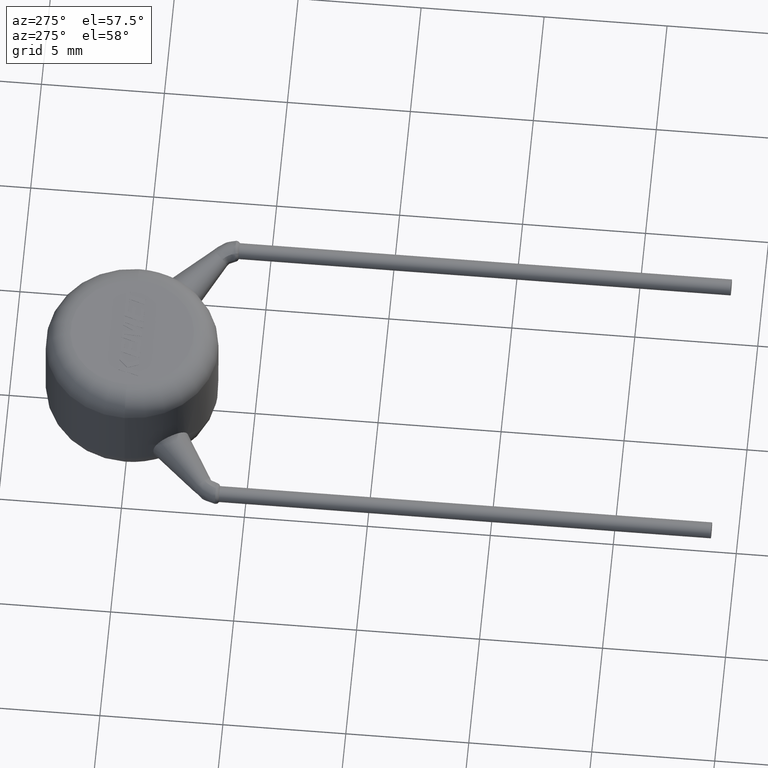
[diagram: clean part render]
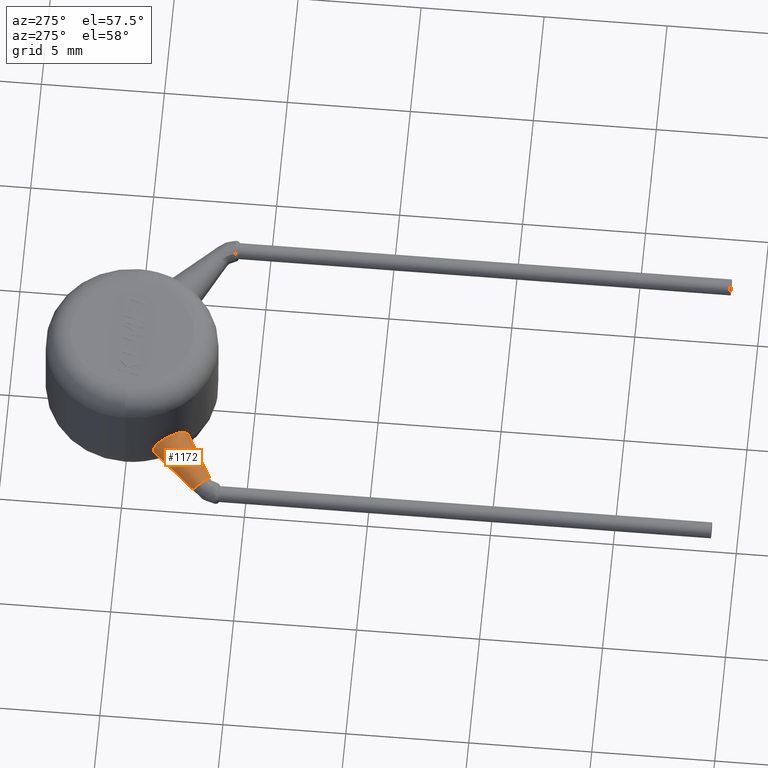
[diagram: same view with one face highlighted and labeled with its STEP entity id]
A machine part, auxiliary view. The second image highlights one B-rep face of the part: STEP entity #1172.
In plain terms, the highlighted conical surface has half-angle 10 deg.
Its self-contained STEP definition (entity closure, byte-faithful):
#33 = CARTESIAN_POINT ( 'NONE',  ( -3.274220083878355500, -1.237393660432096500, 1.740487833592145700 ) ) ;
#64 = CARTESIAN_POINT ( 'NONE',  ( -2.696831857417992600, -2.233046715744670500, 1.969945987202946800 ) ) ;
#137 = CARTESIAN_POINT ( 'NONE',  ( -2.450924826464186500, -2.498852672057829200, 1.446006291394949000 ) ) ;
#383 = CARTESIAN_POINT ( 'NONE',  ( -3.187797544251406800, -1.447236977967028400, 1.973929136335126100 ) ) ;
#444 = CARTESIAN_POINT ( 'NONE',  ( -2.501828765785308200, -2.447886845489028600, 1.649363731398018300 ) ) ;
#629 = CARTESIAN_POINT ( 'NONE',  ( -2.443633382572517800, -2.505724624051334000, 1.228750853704541300 ) ) ;
#701 = EDGE_CURVE ( 'NONE', #2090, #3503, #3355, .T. ) ;
#712 = VECTOR ( 'NONE', #3423, 1000.000000000000100 ) ;
#728 = CARTESIAN_POINT ( 'NONE',  ( -3.147216881566494300, -1.534855430488588200, 2.027612646225244400 ) ) ;
#746 = ORIENTED_EDGE ( 'NONE', *, *, #3065, .T. ) ;
#752 = CARTESIAN_POINT ( 'NONE',  ( -4.572994077886150400, -2.892712905594115200, 0.6654827336113504600 ) ) ;
#805 = DIRECTION ( 'NONE',  ( 0.6928634075151803900, 0.6570890865351145500, 0.2969414603636579800 ) ) ;
#833 = EDGE_LOOP ( 'NONE', ( #3298, #746, #3101, #1379, #1740 ) ) ;
#999 = CARTESIAN_POINT ( 'NONE',  ( -3.988086498593969200, -3.509464981947737300, 0.6654827336113504600 ) ) ;
#1047 = CARTESIAN_POINT ( 'NONE',  ( -3.251275908536034500, -1.298365518682480100, 1.830774735107698600 ) ) ;
#1095 = CARTESIAN_POINT ( 'NONE',  ( -4.280540288240059600, -3.201088943770926200, 0.6654827336113504600 ) ) ;
#1172 = ADVANCED_FACE ( 'NONE', ( #4018 ), #2939, .T. ) ;
#1314 = CARTESIAN_POINT ( 'NONE',  ( -3.305212505386393200, -1.151334136659470700, 1.324167569947953100 ) ) ;
#1350 = CARTESIAN_POINT ( 'NONE',  ( -3.305212505386393200, -1.151334136659470700, 1.324167569947953100 ) ) ;
#1371 = CARTESIAN_POINT ( 'NONE',  ( -2.638738660340016500, -2.300492523601212800, 1.903848150235084100 ) ) ;
#1379 = ORIENTED_EDGE ( 'NONE', *, *, #2152, .F. ) ;
#1401 = CARTESIAN_POINT ( 'NONE',  ( -4.572994077886149500, -2.892712905594114300, 0.6654827336113508000 ) ) ;
#1487 = B_SPLINE_CURVE_WITH_KNOTS ( 'NONE', 3,
 ( #1314, #2669, #3329, #33, #1047, #383, #728, #3633, #3353, #2678, #2027, #64, #1371, #1710, #444, #137, #3404, #2443 ),
 .UNSPECIFIED., .F., .F.,
 ( 4, 2, 2, 2, 2, 2, 2, 2, 4 ),
 ( 0.0003368115931588573300, 0.0006593405238487612600, 0.0009818694545386651800, 0.001304398385228569500, 0.001626927315918473900, 0.001949456246608378300, 0.002271985177298282600, 0.002594514107988187000, 0.002917043038678091800 ),
 .UNSPECIFIED. ) ;
#1643 = DIRECTION ( 'NONE',  ( -0.1241573997028041600, -0.2969414603636596500, 0.9467896858416526800 ) ) ;
#1655 = VERTEX_POINT ( 'NONE', #1350 ) ;
#1710 = CARTESIAN_POINT ( 'NONE',  ( -2.541672679205673200, -2.407302964002985500, 1.744358466167647000 ) ) ;
#1740 = ORIENTED_EDGE ( 'NONE', *, *, #1846, .F. ) ;
#1846 = EDGE_CURVE ( 'NONE', #2393, #1655, #2667, .T. ) ;
#1965 = CIRCLE ( 'NONE', #2920, 0.4249999999999997700 ) ;
#1989 = CARTESIAN_POINT ( 'NONE',  ( -4.280540288240079100, -3.201088943770916000, 0.6654827336113774400 ) ) ;
#2020 = DIRECTION ( 'NONE',  ( 0.6928634075151803900, 0.6570890865351146600, 0.2969414603636579800 ) ) ;
#2025 = CIRCLE ( 'NONE', #3271, 0.4249999999999997700 ) ;
#2027 = CARTESIAN_POINT ( 'NONE',  ( -2.816314911589947300, -2.080329305816449800, 2.063198822563216100 ) ) ;
#2090 = VERTEX_POINT ( 'NONE', #3551 ) ;
#2152 = EDGE_CURVE ( 'NONE', #1655, #3503, #1487, .T. ) ;
#2393 = VERTEX_POINT ( 'NONE', #1401 ) ;
#2443 = CARTESIAN_POINT ( 'NONE',  ( -2.443633382572517800, -2.505724624051334000, 1.228750853704541300 ) ) ;
#2667 = LINE ( 'NONE', #752, #712 ) ;
#2669 = CARTESIAN_POINT ( 'NONE',  ( -3.307415028797901600, -1.145011204253207200, 1.431885261567690900 ) ) ;
#2678 = CARTESIAN_POINT ( 'NONE',  ( -2.878768906906545900, -1.993561091489802800, 2.091466925546289400 ) ) ;
#2920 = AXIS2_PLACEMENT_3D ( 'NONE', #2974, #3622, #1643 ) ;
#2939 = CONICAL_SURFACE ( 'NONE', #4226, 0.4249999999999833400, 0.1745329251994329800 ) ;
#2974 = CARTESIAN_POINT ( 'NONE',  ( -4.280540288240079100, -3.201088943770916000, 0.6654827336113774400 ) ) ;
#2997 = VECTOR ( 'NONE', #3333, 1000.000000000000000 ) ;
#3065 = EDGE_CURVE ( 'NONE', #3215, #2090, #2025, .T. ) ;
#3101 = ORIENTED_EDGE ( 'NONE', *, *, #701, .T. ) ;
#3102 = DIRECTION ( 'NONE',  ( -0.6881265638731811600, 0.7255906780631133900, 0.0000000000000000000 ) ) ;
#3215 = VERTEX_POINT ( 'NONE', #3421 ) ;
#3271 = AXIS2_PLACEMENT_3D ( 'NONE', #1989, #2020, #3973 ) ;
#3298 = ORIENTED_EDGE ( 'NONE', *, *, #3625, .T. ) ;
#3329 = CARTESIAN_POINT ( 'NONE',  ( -3.302139495141762600, -1.160833744846709600, 1.541203955738929200 ) ) ;
#3333 = DIRECTION ( 'NONE',  ( 0.8018291793201911500, 0.5211089278617185800, 0.2924302523568976200 ) ) ;
#3353 = CARTESIAN_POINT ( 'NONE',  ( -2.995881113589885700, -1.812813448237118500, 2.106757822646571300 ) ) ;
#3355 = LINE ( 'NONE', #999, #2997 ) ;
#3404 = CARTESIAN_POINT ( 'NONE',  ( -2.439540116186420100, -2.509716460300589300, 1.337148167540384500 ) ) ;
#3421 = CARTESIAN_POINT ( 'NONE',  ( -4.333307183113770800, -3.327289064425471600, 1.067868350094079500 ) ) ;
#3423 = DIRECTION ( 'NONE',  ( 0.5628453316786220500, 0.7731039258172622800, 0.2924302523568975700 ) ) ;
#3503 = VERTEX_POINT ( 'NONE', #629 ) ;
#3551 = CARTESIAN_POINT ( 'NONE',  ( -3.988086498593967500, -3.509464981947735900, 0.6654827336113510200 ) ) ;
#3622 = DIRECTION ( 'NONE',  ( 0.6928634075151803900, 0.6570890865351146600, 0.2969414603636579800 ) ) ;
#3625 = EDGE_CURVE ( 'NONE', #2393, #3215, #1965, .T. ) ;
#3633 = CARTESIAN_POINT ( 'NONE',  ( -3.050817190485439800, -1.718508004740149300, 2.094224682313007100 ) ) ;
#3973 = DIRECTION ( 'NONE',  ( -0.1241573997028041600, -0.2969414603636596500, 0.9467896858416526800 ) ) ;
#4018 = FACE_OUTER_BOUND ( 'NONE', #833, .T. ) ;
#4226 = AXIS2_PLACEMENT_3D ( 'NONE', #1095, #805, #3102 ) ;